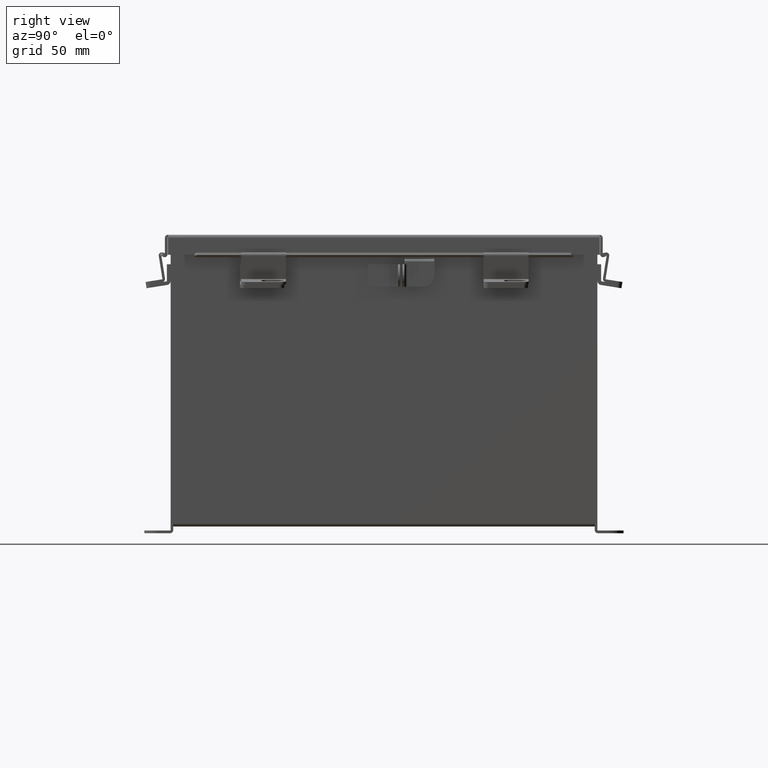
[diagram: clean part render]
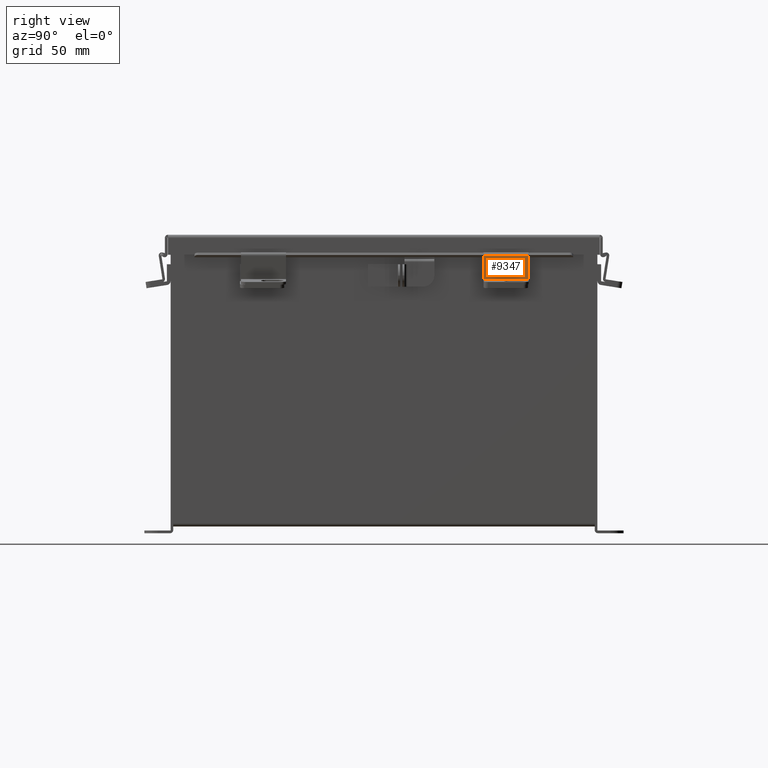
[diagram: same view with one face highlighted and labeled with its STEP entity id]
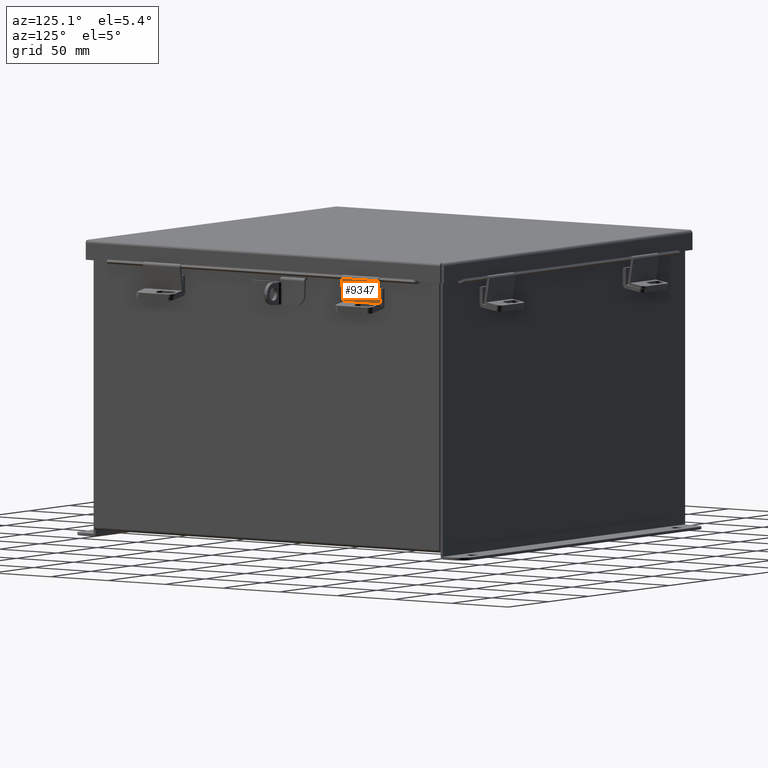
[diagram: same view with one face highlighted and labeled with its STEP entity id]
A machine part, right view. The second image highlights one B-rep face of the part: STEP entity #9347.
A second angle (auxiliary view) of the same face is appended — the face is thin or edge-on in the first view.
In plain terms, the highlighted planar face has unit normal (-0.9877, 0, 0.1564).
Its self-contained STEP definition (entity closure, byte-faithful):
#261 = DIRECTION ( 'NONE',  ( -0.0000000000000000000, -1.000000000000000000, -0.0000000000000000000 ) ) ;
#847 = EDGE_LOOP ( 'NONE', ( #7418, #2313, #2606, #2288 ) ) ;
#1889 = CARTESIAN_POINT ( 'NONE',  ( 0.6325000000000000600, 0.4175000000000001500, 0.0000000000000000000 ) ) ;
#2288 = ORIENTED_EDGE ( 'NONE', *, *, #4597, .T. ) ;
#2313 = ORIENTED_EDGE ( 'NONE', *, *, #17803, .T. ) ;
#2606 = ORIENTED_EDGE ( 'NONE', *, *, #13368, .F. ) ;
#4597 = EDGE_CURVE ( 'NONE', #8183, #15693, #17671, .T. ) ;
#5494 = CARTESIAN_POINT ( 'NONE',  ( 0.6324999999999998400, 0.3243453803252444000, -1.024442997624098700E-016 ) ) ;
#6022 = PLANE ( 'NONE',  #13625 ) ;
#6068 = VECTOR ( 'NONE', #261, 39.37007874015748100 ) ;
#6434 = DIRECTION ( 'NONE',  ( -1.000000000000000000, -0.0000000000000000000, -0.0000000000000000000 ) ) ;
#6846 = CARTESIAN_POINT ( 'NONE',  ( 0.6325000000000000600, -0.4174999999999998700, 0.0000000000000000000 ) ) ;
#7418 = ORIENTED_EDGE ( 'NONE', *, *, #15548, .T. ) ;
#7420 = DIRECTION ( 'NONE',  ( 0.0000000000000000000, 0.0000000000000000000, -1.000000000000000000 ) ) ;
#8084 = LINE ( 'NONE', #8885, #14977 ) ;
#8183 = VERTEX_POINT ( 'NONE', #17784 ) ;
#8598 = DIRECTION ( 'NONE',  ( -1.000000000000000000, 0.0000000000000000000, 0.0000000000000000000 ) ) ;
#8885 = CARTESIAN_POINT ( 'NONE',  ( 0.6325000000000000600, 0.3243453803252444000, -1.024442997624098700E-016 ) ) ;
#9347 = ADVANCED_FACE ( 'NONE', ( #10596 ), #6022, .F. ) ;
#10106 = VERTEX_POINT ( 'NONE', #16029 ) ;
#10596 = FACE_OUTER_BOUND ( 'NONE', #847, .T. ) ;
#12634 = CARTESIAN_POINT ( 'NONE',  ( -0.6325000000000000600, 0.3243453803252444000, 0.0000000000000000000 ) ) ;
#12749 = CARTESIAN_POINT ( 'NONE',  ( 0.6325000000000000600, -0.3344999999999998500, -3.734948428837859800E-017 ) ) ;
#13368 = EDGE_CURVE ( 'NONE', #8183, #10106, #16936, .T. ) ;
#13514 = DIRECTION ( 'NONE',  ( 0.0000000000000000000, 1.000000000000000000, 0.0000000000000000000 ) ) ;
#13574 = VECTOR ( 'NONE', #13514, 39.37007874015748100 ) ;
#13625 = AXIS2_PLACEMENT_3D ( 'NONE', #1889, #7420, #17051 ) ;
#14929 = VERTEX_POINT ( 'NONE', #12634 ) ;
#14977 = VECTOR ( 'NONE', #6434, 39.37007874015748100 ) ;
#15548 = EDGE_CURVE ( 'NONE', #15693, #14929, #8084, .T. ) ;
#15693 = VERTEX_POINT ( 'NONE', #5494 ) ;
#16029 = CARTESIAN_POINT ( 'NONE',  ( -0.6325000000000000600, -0.3344999999999998500, -3.734948428837859800E-017 ) ) ;
#16493 = VECTOR ( 'NONE', #8598, 39.37007874015748100 ) ;
#16765 = CARTESIAN_POINT ( 'NONE',  ( -0.6325000000000000600, -0.4174999999999998700, 0.0000000000000000000 ) ) ;
#16936 = LINE ( 'NONE', #12749, #16493 ) ;
#17051 = DIRECTION ( 'NONE',  ( -1.000000000000000000, 0.0000000000000000000, -0.0000000000000000000 ) ) ;
#17056 = LINE ( 'NONE', #16765, #6068 ) ;
#17671 = LINE ( 'NONE', #6846, #13574 ) ;
#17784 = CARTESIAN_POINT ( 'NONE',  ( 0.6325000000000000600, -0.3344999999999998500, -3.734948428837859800E-017 ) ) ;
#17803 = EDGE_CURVE ( 'NONE', #14929, #10106, #17056, .T. ) ;